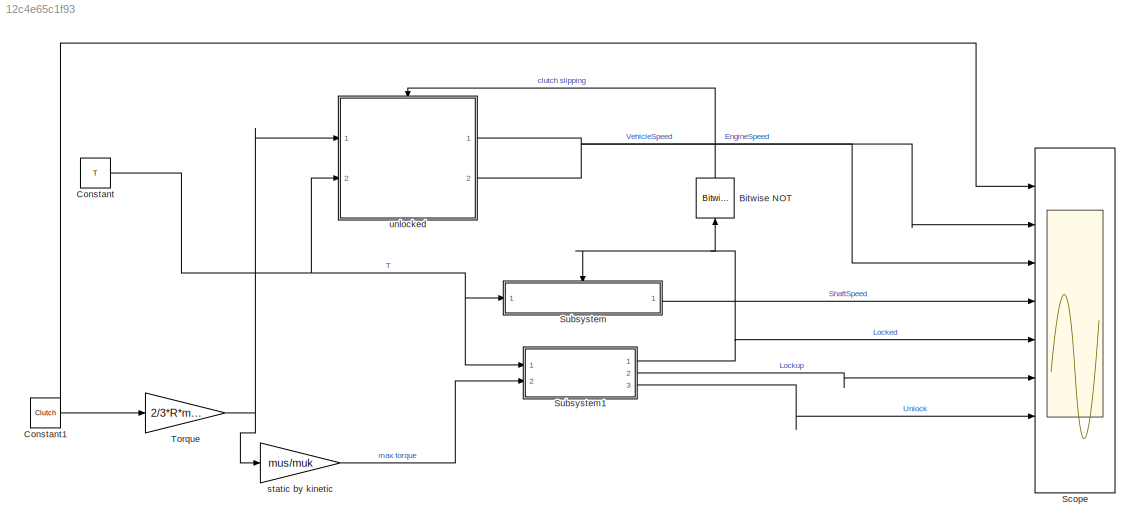
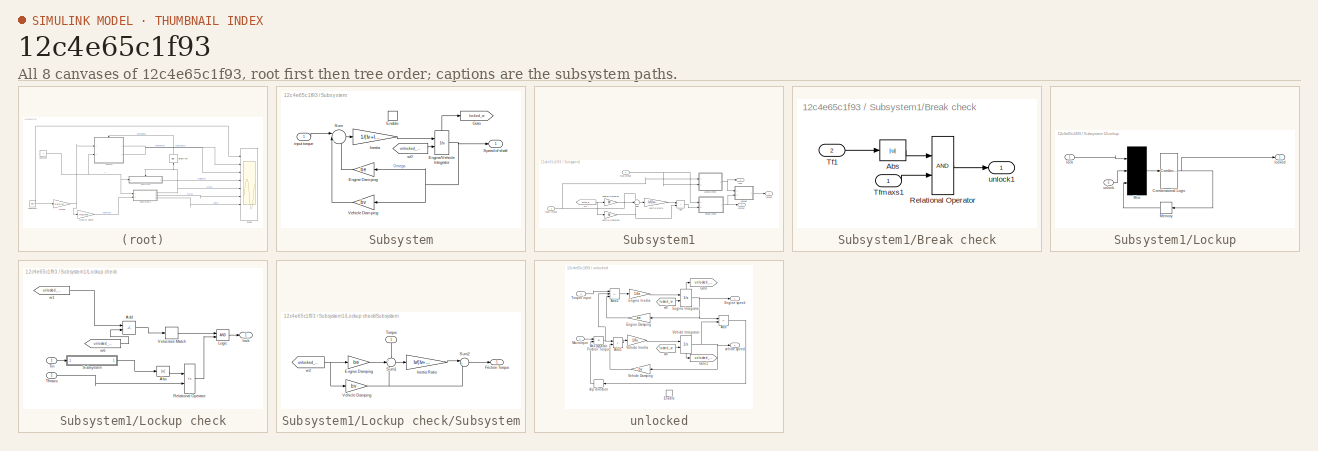
[diagram: thumbnail index - all 8 canvases of the model, root first then tree order]
MODEL slx_12c4e65c1f93
KIND model
CONFIG AbsTol = auto
CONFIG EnableMultiTasking = off
CONFIG FixedStep = auto
CONFIG MaxStep = auto
CONFIG MinStep = auto
CONFIG RelTol = 1e-3
CONFIG SampleTimeConstraint = Unconstrained
CONFIG SolverName = VariableStepAuto
CONFIG StartTime = 0.0
CONFIG StopTime = 10.0
BLOCK [Reference] Bitwise NOT  REF=simulink/Logic and Bit
Operations/Bitwise
Operator
  NameLocation = right
  Ports = [1, 1]
  SourceBlock = simulink/Logic and Bit\nOperations/Bitwise\nOperator
  SourceProductBaseCode = SL
  SourceType = Bitwise Operator
BLOCK [Constant] Constant
  Value = T
BLOCK [Constant] Constant1
  Value = Clutch
BLOCK [Scope] Scope
  Floating = off
  NumInputPorts = 8
  Ports = [8]
  ScopeSpecificationString = Simulink.scopes.TimeScopeBlockCfg('CurrentConfiguration', extmgr.ConfigurationSet(extmgr.Configuration('Core','General UI',true),extmgr.Configuration('Core','Source UI',true),extmgr.Configuration('Sources','WiredSimulink',true),extmgr.Configuration('Visuals','Time Domain',true,'SerializedDisplays',{struct('MinYLimReal','4.00000','MaxYLimReal','6.00000','YLabelReal','','MinYLimMag','4.00000','MaxYL...<+6192ch>
BLOCK [SubSystem] Subsystem
  Ports = [1, 1, 1]
  RequestExecContextInheritance = off
BLOCK [EnablePort] Subsystem/Enable
  Ports = []
  StatesWhenEnabling = reset
BLOCK [Gain] Subsystem/Engine Damping
  Gain = be
  OutDataTypeStr = Inherit: Same as input
  ParamDataTypeStr = Inherit: Same as input
  SaturateOnIntegerOverflow = on
BLOCK [Integrator] Subsystem/Engine//Vehicle Integrator
  InitialConditionSource = external
  Ports = [2, 1, 0, 0, 1]
  ShowStatePort = on
BLOCK [Goto] Subsystem/Goto
  GotoTag = locked_w
  NameLocation = top
  TagVisibility = global
BLOCK [Gain] Subsystem/Inertia
  Gain = 1/(Iv+Ie)
  OutDataTypeStr = Inherit: Same as input
  ParamDataTypeStr = Inherit: Same as input
  SaturateOnIntegerOverflow = on
BLOCK [Outport] Subsystem/Speed of shaft
  InitialOutput = 0
  VectorParamsAs1DForOutWhenUnconnected = off
BLOCK [Sum] Subsystem/Sum
  InputSameDT = on
  Inputs = ||+--
  OutDataTypeStr = Inherit: Same as first input
  Ports = [3, 1]
  SaturateOnIntegerOverflow = on
BLOCK [Gain] Subsystem/Vehicle Damping
  Gain = bv
  OutDataTypeStr = Inherit: Same as input
  ParamDataTypeStr = Inherit: Same as input
  SaturateOnIntegerOverflow = on
BLOCK [Inport] Subsystem/input torque
BLOCK [From] Subsystem/w0
  GotoTag = unlocked_we
  TagVisibility = global
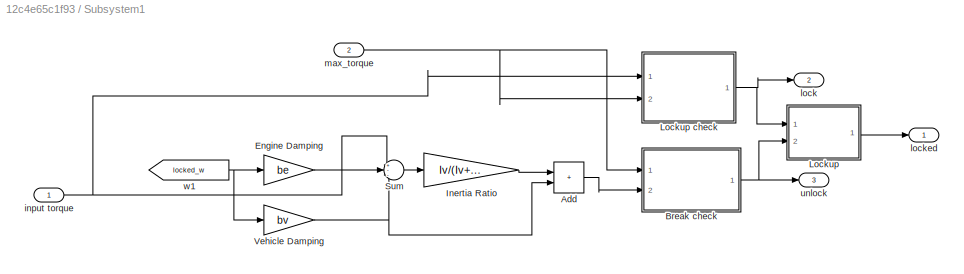
BLOCK [SubSystem] Subsystem1
  Ports = [2, 3]
  RequestExecContextInheritance = off
BLOCK [Sum] Subsystem1/Add
  IconShape = rectangular
  Ports = [2, 1]
BLOCK [SubSystem] Subsystem1/Break check
  Ports = [2, 1]
  RequestExecContextInheritance = off
BLOCK [Abs] Subsystem1/Break check/Abs
BLOCK [RelationalOperator] Subsystem1/Break check/Relational Operator
  OutDataTypeStr = boolean
  Ports = [2, 1]
BLOCK [Inport] Subsystem1/Break check/Tf1
  Port = 2
BLOCK [Inport] Subsystem1/Break check/Tfmaxs1
BLOCK [Outport] Subsystem1/Break check/unlock1
  InitialOutput = 0
  VectorParamsAs1DForOutWhenUnconnected = off
BLOCK [Gain] Subsystem1/Engine Damping
  Gain = be
  NameLocation = top
  OutDataTypeStr = Inherit: Same as input
  ParamDataTypeStr = Inherit: Same as input
  SaturateOnIntegerOverflow = on
BLOCK [Gain] Subsystem1/Inertia Ratio
  Gain = Iv/(Iv+Ie)
  OutDataTypeStr = Inherit: Same as input
  ParamDataTypeStr = Inherit: Same as input
  SaturateOnIntegerOverflow = on
BLOCK [SubSystem] Subsystem1/Lockup
  Ports = [2, 1]
  RequestExecContextInheritance = off
BLOCK [SubSystem] Subsystem1/Lockup check
  Ports = [2, 1]
  RequestExecContextInheritance = off
BLOCK [Abs] Subsystem1/Lockup check/Abs
BLOCK [Sum] Subsystem1/Lockup check/Add
  IconShape = rectangular
  Inputs = +-
  Ports = [2, 1]
BLOCK [Logic] Subsystem1/Lockup check/Logic
  AttributesFormatString = (%<Operator>)
  IconShape = distinctive
  OutDataTypeStr = boolean
  Ports = [2, 1]
BLOCK [RelationalOperator] Subsystem1/Lockup check/Relational Operator
  Operator = <=
  OutDataTypeStr = boolean
  Ports = [2, 1]
BLOCK [SubSystem] Subsystem1/Lockup check/Subsystem
  Ports = [1, 1]
  RequestExecContextInheritance = off
BLOCK [Gain] Subsystem1/Lockup check/Subsystem/Engine Damping
  Gain = be
  NameLocation = top
  OutDataTypeStr = Inherit: Same as input
  ParamDataTypeStr = Inherit: Same as input
  SaturateOnIntegerOverflow = on
BLOCK [Outport] Subsystem1/Lockup check/Subsystem/Friction Torque
  InitialOutput = 0
  VectorParamsAs1DForOutWhenUnconnected = off
BLOCK [Gain] Subsystem1/Lockup check/Subsystem/Inertia Ratio
  Gain = Iv/(Iv+Ie)
  OutDataTypeStr = Inherit: Same as input
  ParamDataTypeStr = Inherit: Same as input
  SaturateOnIntegerOverflow = on
BLOCK [Sum] Subsystem1/Lockup check/Subsystem/Sum1
  InputSameDT = on
  Inputs = +--
  OutDataTypeStr = Inherit: Same as first input
  Ports = [3, 1]
  SaturateOnIntegerOverflow = on
BLOCK [Sum] Subsystem1/Lockup check/Subsystem/Sum2
  InputSameDT = on
  Inputs = |++
  OutDataTypeStr = Inherit: Same as first input
  Ports = [2, 1]
  SaturateOnIntegerOverflow = on
BLOCK [Inport] Subsystem1/Lockup check/Subsystem/Torque
  NameLocation = left
BLOCK [Gain] Subsystem1/Lockup check/Subsystem/Vehicle Damping
  Gain = bv
  OutDataTypeStr = Inherit: Same as input
  ParamDataTypeStr = Inherit: Same as input
  SaturateOnIntegerOverflow = on
BLOCK [From] Subsystem1/Lockup check/Subsystem/w2
  GotoTag = unlocked_we
  TagVisibility = global
BLOCK [Inport] Subsystem1/Lockup check/Tfmaxs
  Port = 2
BLOCK [Inport] Subsystem1/Lockup check/Tin
BLOCK [HitCross] Subsystem1/Lockup check/Velocities Match
  Ports = [1, 1]
BLOCK [Outport] Subsystem1/Lockup check/lock
  InitialOutput = 0
  VectorParamsAs1DForOutWhenUnconnected = off
BLOCK [From] Subsystem1/Lockup check/w1
  GotoTag = unlocked_we
  TagVisibility = global
BLOCK [From] Subsystem1/Lockup check/w6
  GotoTag = unlocked_wv
  TagVisibility = global
BLOCK [CombinatorialLogic] Subsystem1/Lockup/Combinatorial Logic
  TruthTable = [0;1;0;0;1;1;1;0]
BLOCK [Memory] Subsystem1/Lockup/Memory
BLOCK [Mux] Subsystem1/Lockup/Mux
  Inputs = 3
  Ports = [3, 1]
BLOCK [Inport] Subsystem1/Lockup/lock
  NameLocation = top
BLOCK [Outport] Subsystem1/Lockup/locked
  InitialOutput = 0
  VectorParamsAs1DForOutWhenUnconnected = off
BLOCK [Inport] Subsystem1/Lockup/unlock
  Port = 2
BLOCK [Sum] Subsystem1/Sum
  InputSameDT = on
  Inputs = +--
  OutDataTypeStr = Inherit: Same as first input
  Ports = [3, 1]
  SaturateOnIntegerOverflow = on
BLOCK [Gain] Subsystem1/Vehicle Damping
  Gain = bv
  OutDataTypeStr = Inherit: Same as input
  ParamDataTypeStr = Inherit: Same as input
  SaturateOnIntegerOverflow = on
BLOCK [Inport] Subsystem1/input torque
BLOCK [Outport] Subsystem1/lock
  InitialOutput = 0
  Port = 2
  VectorParamsAs1DForOutWhenUnconnected = off
BLOCK [Outport] Subsystem1/locked
  InitialOutput = 0
  VectorParamsAs1DForOutWhenUnconnected = off
BLOCK [Inport] Subsystem1/max_torque
  Port = 2
BLOCK [Outport] Subsystem1/unlock
  InitialOutput = 0
  Port = 3
  VectorParamsAs1DForOutWhenUnconnected = off
BLOCK [From] Subsystem1/w1
  GotoTag = locked_w
  NameLocation = top
  TagVisibility = global
BLOCK [Gain] Torque 
  Gain = 2/3*R*muk
  OutDataTypeStr = Inherit: Same as input
  ParamDataTypeStr = Inherit: Same as input
  SaturateOnIntegerOverflow = on
BLOCK [Gain] static by kinetic
  Gain = mus/muk
  OutDataTypeStr = Inherit: Same as input
  ParamDataTypeStr = Inherit: Same as input
  SaturateOnIntegerOverflow = on
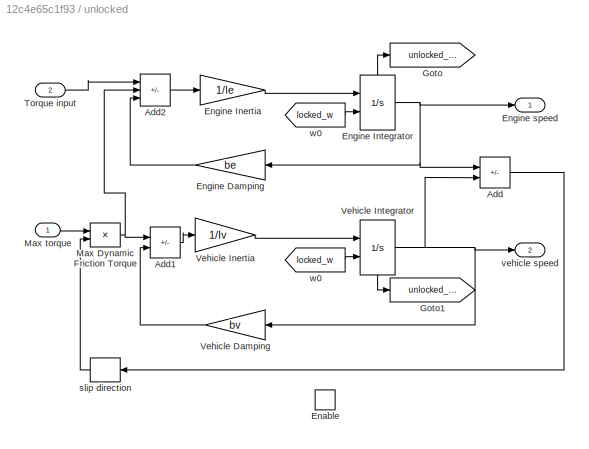
BLOCK [SubSystem] unlocked
  Ports = [2, 2, 1]
  RequestExecContextInheritance = off
BLOCK [Sum] unlocked/Add
  IconShape = rectangular
  Inputs = +-
  Ports = [2, 1]
BLOCK [Sum] unlocked/Add1
  IconShape = rectangular
  Inputs = +-
  Ports = [2, 1]
BLOCK [Sum] unlocked/Add2
  IconShape = rectangular
  Inputs = +--
  Ports = [3, 1]
BLOCK [EnablePort] unlocked/Enable
  NameLocation = left
  Ports = []
BLOCK [Gain] unlocked/Engine Damping
  Gain = be
  OutDataTypeStr = Inherit: Same as input
  ParamDataTypeStr = Inherit: Same as input
  SaturateOnIntegerOverflow = on
BLOCK [Gain] unlocked/Engine Inertia
  Gain = 1/Ie
  OutDataTypeStr = Inherit: Same as input
  ParamDataTypeStr = Inherit: Same as input
  SaturateOnIntegerOverflow = on
BLOCK [Integrator] unlocked/Engine Integrator
  InitialConditionSource = external
  Ports = [2, 1, 0, 0, 1]
  ShowStatePort = on
BLOCK [Outport] unlocked/Engine speed
  InitialOutput = 0
  VectorParamsAs1DForOutWhenUnconnected = off
BLOCK [Goto] unlocked/Goto
  GotoTag = unlocked_we
  TagVisibility = global
BLOCK [Goto] unlocked/Goto1
  GotoTag = unlocked_wv
  TagVisibility = global
BLOCK [Product] unlocked/Max Dynamic Friction Torque
  InputSameDT = on
  OutDataTypeStr = Inherit: Same as first input
  Ports = [2, 1]
  RndMeth = Zero
  SaturateOnIntegerOverflow = on
BLOCK [Inport] unlocked/Max torque
BLOCK [Inport] unlocked/Torque input
  Port = 2
BLOCK [Gain] unlocked/Vehicle Damping
  Gain = bv
  OutDataTypeStr = Inherit: Same as input
  ParamDataTypeStr = Inherit: Same as input
  SaturateOnIntegerOverflow = on
BLOCK [Gain] unlocked/Vehicle Inertia
  Gain = 1/Iv
  OutDataTypeStr = Inherit: Same as input
  ParamDataTypeStr = Inherit: Same as input
  SaturateOnIntegerOverflow = on
BLOCK [Integrator] unlocked/Vehicle Integrator
  InitialConditionSource = external
  NameLocation = top
  Ports = [2, 1, 0, 0, 1]
  ShowStatePort = on
BLOCK [Signum] unlocked/slip direction
BLOCK [Outport] unlocked/vehicle speed
  InitialOutput = 0
  Port = 2
  VectorParamsAs1DForOutWhenUnconnected = off
BLOCK [From] unlocked/w0
  GotoTag = locked_w
  TagVisibility = global
BLOCK [From] unlocked/w0 
  GotoTag = locked_w
  TagVisibility = global
LINE Bitwise NOT:1 -> unlocked:enable
NET Constant1:1 -> Scope:1, Torque :1
NET Constant:1 -> Subsystem1:1, Subsystem:1, unlocked:2
LINE Subsystem/Engine Damping:1 -> Subsystem/Sum:3
NET Subsystem/Engine//Vehicle Integrator:1 -> Subsystem/Engine Damping:1, Subsystem/Speed of shaft:1, Subsystem/Vehicle Damping:1
LINE Subsystem/Engine//Vehicle Integrator:state -> Subsystem/Goto:1
LINE Subsystem/Inertia:1 -> Subsystem/Engine//Vehicle Integrator:1
LINE Subsystem/Sum:1 -> Subsystem/Inertia:1
LINE Subsystem/Vehicle Damping:1 -> Subsystem/Sum:2
LINE Subsystem/input torque:1 -> Subsystem/Sum:1
LINE Subsystem/w0:1 -> Subsystem/Engine//Vehicle Integrator:2
LINE Subsystem1/Add:1 -> Subsystem1/Break check:2
LINE Subsystem1/Break check/Abs:1 -> Subsystem1/Break check/Relational Operator:1
LINE Subsystem1/Break check/Relational Operator:1 -> Subsystem1/Break check/unlock1:1
LINE Subsystem1/Break check/Tf1:1 -> Subsystem1/Break check/Abs:1
LINE Subsystem1/Break check/Tfmaxs1:1 -> Subsystem1/Break check/Relational Operator:2
NET Subsystem1/Break check:1 -> Subsystem1/Lockup:2, Subsystem1/unlock:1
LINE Subsystem1/Engine Damping:1 -> Subsystem1/Sum:2
LINE Subsystem1/Inertia Ratio:1 -> Subsystem1/Add:1
LINE Subsystem1/Lockup check/Abs:1 -> Subsystem1/Lockup check/Relational Operator:1
LINE Subsystem1/Lockup check/Add:1 -> Subsystem1/Lockup check/Velocities Match:1
LINE Subsystem1/Lockup check/Logic:1 -> Subsystem1/Lockup check/lock:1
LINE Subsystem1/Lockup check/Relational Operator:1 -> Subsystem1/Lockup check/Logic:2
LINE Subsystem1/Lockup check/Subsystem/Engine Damping:1 -> Subsystem1/Lockup check/Subsystem/Sum1:2
LINE Subsystem1/Lockup check/Subsystem/Inertia Ratio:1 -> Subsystem1/Lockup check/Subsystem/Sum2:1
LINE Subsystem1/Lockup check/Subsystem/Sum1:1 -> Subsystem1/Lockup check/Subsystem/Inertia Ratio:1
LINE Subsystem1/Lockup check/Subsystem/Sum2:1 -> Subsystem1/Lockup check/Subsystem/Friction Torque:1
LINE Subsystem1/Lockup check/Subsystem/Torque:1 -> Subsystem1/Lockup check/Subsystem/Sum1:1
NET Subsystem1/Lockup check/Subsystem/Vehicle Damping:1 -> Subsystem1/Lockup check/Subsystem/Sum1:3, Subsystem1/Lockup check/Subsystem/Sum2:2
NET Subsystem1/Lockup check/Subsystem/w2:1 -> Subsystem1/Lockup check/Subsystem/Engine Damping:1, Subsystem1/Lockup check/Subsystem/Vehicle Damping:1
LINE Subsystem1/Lockup check/Subsystem:1 -> Subsystem1/Lockup check/Abs:1
LINE Subsystem1/Lockup check/Tfmaxs:1 -> Subsystem1/Lockup check/Relational Operator:2
LINE Subsystem1/Lockup check/Tin:1 -> Subsystem1/Lockup check/Subsystem:1
LINE Subsystem1/Lockup check/Velocities Match:1 -> Subsystem1/Lockup check/Logic:1
LINE Subsystem1/Lockup check/w1:1 -> Subsystem1/Lockup check/Add:1
LINE Subsystem1/Lockup check/w6:1 -> Subsystem1/Lockup check/Add:2
NET Subsystem1/Lockup check:1 -> Subsystem1/Lockup:1, Subsystem1/lock:1
NET Subsystem1/Lockup/Combinatorial Logic:1 -> Subsystem1/Lockup/Memory:1, Subsystem1/Lockup/locked:1
LINE Subsystem1/Lockup/Memory:1 -> Subsystem1/Lockup/Mux:3
LINE Subsystem1/Lockup/Mux:1 -> Subsystem1/Lockup/Combinatorial Logic:1
LINE Subsystem1/Lockup/lock:1 -> Subsystem1/Lockup/Mux:1
LINE Subsystem1/Lockup/unlock:1 -> Subsystem1/Lockup/Mux:2
LINE Subsystem1/Lockup:1 -> Subsystem1/locked:1
LINE Subsystem1/Sum:1 -> Subsystem1/Inertia Ratio:1
NET Subsystem1/Vehicle Damping:1 -> Subsystem1/Add:2, Subsystem1/Sum:3
NET Subsystem1/input torque:1 -> Subsystem1/Lockup check:1, Subsystem1/Sum:1
NET Subsystem1/max_torque:1 -> Subsystem1/Break check:1, Subsystem1/Lockup check:2
NET Subsystem1/w1:1 -> Subsystem1/Engine Damping:1, Subsystem1/Vehicle Damping:1
NET Subsystem1:1 -> Bitwise NOT:1, Scope:5, Subsystem:enable
LINE Subsystem1:2 -> Scope:6
LINE Subsystem1:3 -> Scope:7
LINE Subsystem:1 -> Scope:4
NET Torque :1 -> static by kinetic:1, unlocked:1
LINE static by kinetic:1 -> Subsystem1:2
LINE unlocked/Add1:1 -> unlocked/Vehicle Inertia:1
LINE unlocked/Add2:1 -> unlocked/Engine Inertia:1
LINE unlocked/Add:1 -> unlocked/slip direction:1
LINE unlocked/Engine Damping:1 -> unlocked/Add2:3
LINE unlocked/Engine Inertia:1 -> unlocked/Engine Integrator:1
NET unlocked/Engine Integrator:1 -> unlocked/Add:1, unlocked/Engine Damping:1, unlocked/Engine speed:1
LINE unlocked/Engine Integrator:state -> unlocked/Goto:1
NET unlocked/Max Dynamic Friction Torque:1 -> unlocked/Add1:1, unlocked/Add2:2
LINE unlocked/Max torque:1 -> unlocked/Max Dynamic Friction Torque:1
LINE unlocked/Torque input:1 -> unlocked/Add2:1
LINE unlocked/Vehicle Damping:1 -> unlocked/Add1:2
LINE unlocked/Vehicle Inertia:1 -> unlocked/Vehicle Integrator:1
NET unlocked/Vehicle Integrator:1 -> unlocked/Add:2, unlocked/Vehicle Damping:1, unlocked/vehicle speed:1
LINE unlocked/Vehicle Integrator:state -> unlocked/Goto1:1
LINE unlocked/slip direction:1 -> unlocked/Max Dynamic Friction Torque:2
LINE unlocked/w0 :1 -> unlocked/Engine Integrator:2
LINE unlocked/w0:1 -> unlocked/Vehicle Integrator:2
LINE unlocked:1 -> Scope:2
LINE unlocked:2 -> Scope:3
note: NET lines group one-source signal fan-out (src -> all destinations, sorted); 1:1 wires keep LINE
